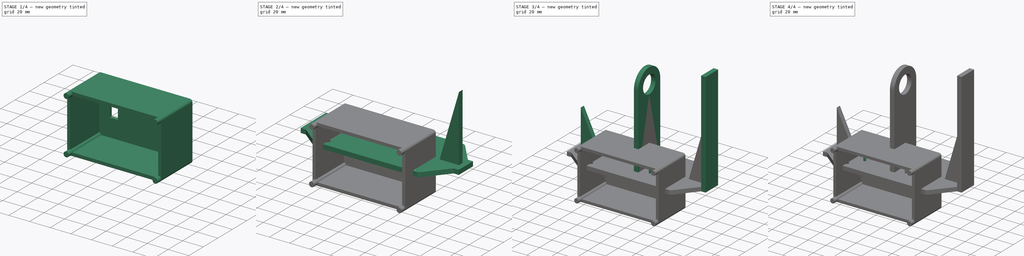
[diagram: build sequence overview — one tinted view per stage of 4, left to right]
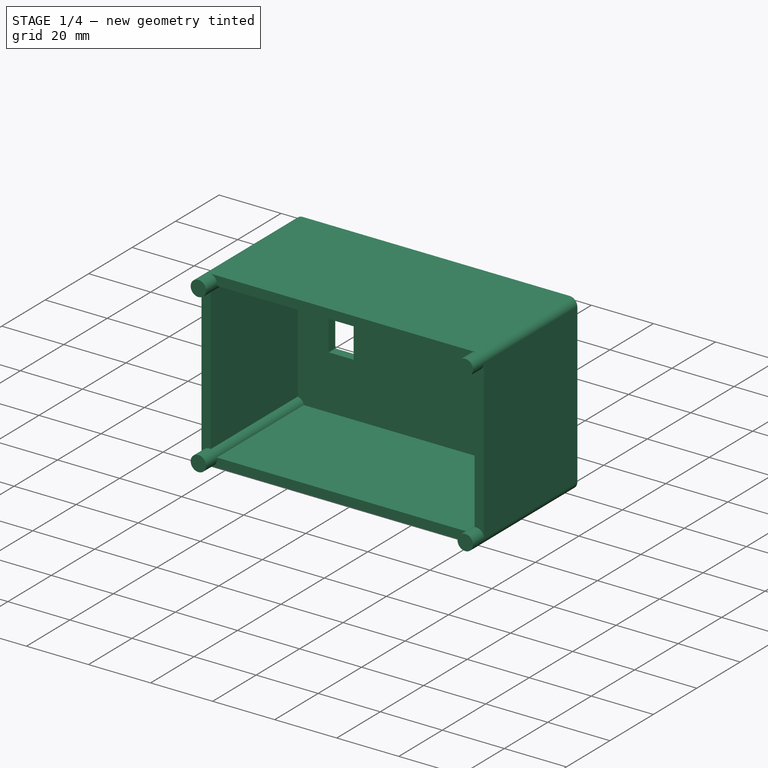
[diagram: stage 1 of 4 — iso view after this stage's code; geometry added in this stage tinted green]
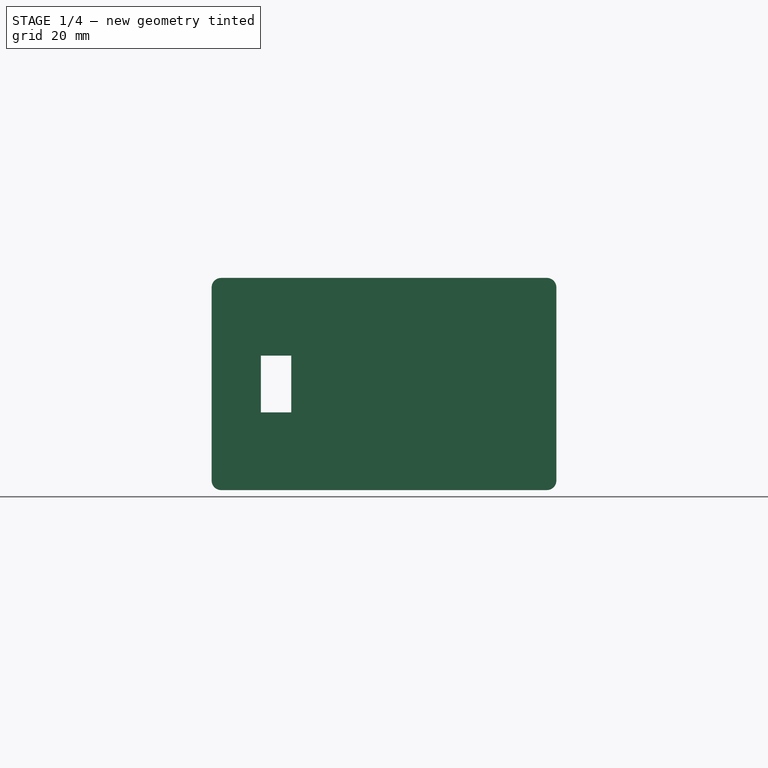
[diagram: stage 1 of 4 — front view after this stage's code; geometry added in this stage tinted green]
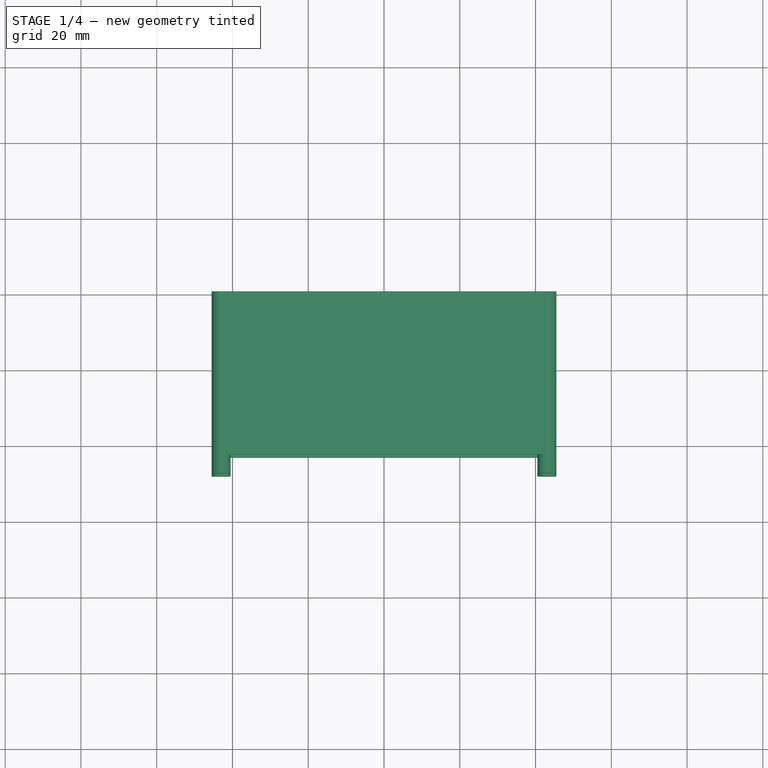
[diagram: stage 1 of 4 — top view after this stage's code; geometry added in this stage tinted green]
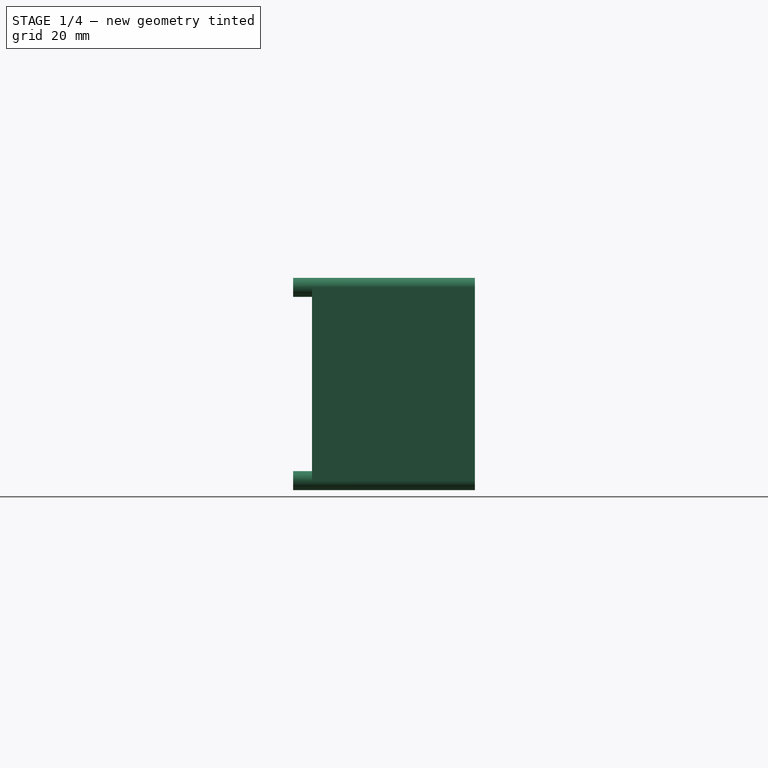
[diagram: stage 1 of 4 — right view after this stage's code; geometry added in this stage tinted green]
FCSTD DOCUMENT  (FreeCAD 0.20R29603 (Git))
Label: body1
License: All rights reserved
LicenseURL: http://en.wikipedia.org/wiki/All_rights_reserved
objects: Sketcher::SketchObject×12, PartDesign::Pad×12, PartDesign::Body×10, Part::Fillet×1
note: 47 computed .brp shape members not serialized (recipe doc carries the construction recipe); baked Part::Feature solids carry a one-line shape summary decoded from their .brp

FEATURE [Sketcher::SketchObject] Sketch021
  FullyConstrained = true
  MapMode = 5
  Placement = pos=(0,0,0) rot=(1,0,0;1.5708rad)
  Support = -> [XZ_Plane009]
  sketch-geometry (16):
    g0: LineSegment StartX=-40.5505 StartY=25 StartZ=0 EndX=40.5505 EndY=25 EndZ=0
    g1: LineSegment StartX=42.5 StartY=23.0505 StartZ=0 EndX=42.5 EndY=-23.0505 EndZ=0
    g2: LineSegment StartX=40.5505 StartY=-25 StartZ=0 EndX=-40.5505 EndY=-25 EndZ=0
    g3: LineSegment StartX=-42.5 StartY=-23.0505 StartZ=0 EndX=-42.5 EndY=23.0505 EndZ=0
    g4: LineSegment StartX=-43 StartY=28 StartZ=0 EndX=43 EndY=28 EndZ=0
    g5: LineSegment StartX=45.5 StartY=25.5 StartZ=0 EndX=45.5 EndY=-25.5 EndZ=0
    g6: LineSegment StartX=43 StartY=-28 StartZ=0 EndX=-43 EndY=-28 EndZ=0
    g7: LineSegment StartX=-45.5 StartY=-25.5 StartZ=0 EndX=-45.5 EndY=25.5 EndZ=0
    g8: ArcOfCircle CenterX=-43 CenterY=25.5 CenterZ=0 NormalX=0 NormalY=0 NormalZ=1 AngleXU=0 Radius=2.5 StartAngle=4.91375 EndAngle=6.08183
    g9: ArcOfCircle CenterX=43 CenterY=25.5 CenterZ=0 NormalX=0 NormalY=0 NormalZ=1 AngleXU=0 Radius=2.5 StartAngle=3.34295 EndAngle=4.51103
    g10: ArcOfCircle CenterX=43 CenterY=-25.5 CenterZ=0 NormalX=0 NormalY=0 NormalZ=1 AngleXU=0 Radius=2.5 StartAngle=4.71239 EndAngle=6.28319
    g11: ArcOfCircle CenterX=-43 CenterY=-25.5 CenterZ=0 NormalX=0 NormalY=0 NormalZ=1 AngleXU=0 Radius=2.5 StartAngle=3.14159 EndAngle=4.71239
    g12: ArcOfCircle CenterX=-43 CenterY=-25.5 CenterZ=0 NormalX=0 NormalY=0 NormalZ=1 AngleXU=0 Radius=2.5 StartAngle=0.201358 EndAngle=1.36944
    g13: ArcOfCircle CenterX=43 CenterY=-25.5 CenterZ=0 NormalX=0 NormalY=0 NormalZ=1 AngleXU=0 Radius=2.5 StartAngle=1.77215 EndAngle=2.94023
    g14: ArcOfCircle CenterX=43 CenterY=25.5 CenterZ=0 NormalX=0 NormalY=0 NormalZ=1 AngleXU=0 Radius=2.5 StartAngle=5e-16 EndAngle=1.5708
    g15: ArcOfCircle CenterX=-43 CenterY=25.5 CenterZ=0 NormalX=0 NormalY=0 NormalZ=1 AngleXU=0 Radius=2.5 StartAngle=1.5708 EndAngle=3.14159
  constraints (44):
    c: Horizontal(g0)
    c: Horizontal(g2)
    c: Vertical(g1)
    c: Vertical(g3)
    c: Horizontal(g4)
    c: Horizontal(g6)
    c: Vertical(g5)
    c: Vertical(g7)
    c: Equal(g8,g9)
    c: Equal(g8,g10)
    c: Diameter(g8) = 5
    c: Coincident(g12,g3)
    c: Tangent(g11,g7) = 1.5708
    c: Equal(g11,g12)
    c: Tangent(g11,g6) = 1.5708
    c: Coincident(g12,g2)
    c: Coincident(g11,g12)
    c: Tangent(g10,g6) = 1.5708
    c: Coincident(g2,g13)
    c: Equal(g10,g13)
    c: Tangent(g10,g5) = 1.5708
    c: Coincident(g13,g1)
    c: Coincident(g10,g13)
    c: Coincident(g14,g4) = 1.5708
    c: Equal(g9,g14)
    c: Tangent(g14,g5) = 1.5708
    c: Coincident(g9,g14)
    c: Coincident(g1,g9)
    c: Coincident(g0,g9)
    c: Coincident(g15,g7) = 1.5708
    c: Coincident(g8,g3)
    c: Equal(g8,g15)
    c: Coincident(g8,g0)
    c: Tangent(g15,g4) = 1.5708
    c: Coincident(g8,g15)
    c: DistanceX(g3,g1) = 85
    c: DistanceY(g0,g4) = 3
    c: DistanceX(g1,g5) = 3
    c: Equal(g6,g4)
    c: Equal(g5,g7)
    c: Symmetric(g0,g2,g-1)
    c: Symmetric(g3,g1,g-2)
    c: DistanceY(g6,g2) = 3
    c: DistanceY(g2,g0) = 50
FEATURE [PartDesign::Pad] Pad009
  Direction = (0,-1,2e-16)
  Length = 43
  Length2 = 10
  Placement = pos=(0,0,0) rot=(1,0,0;1.5708rad)
  Profile = -> Sketch021
  ReferenceAxis = -> Sketch021 [N_Axis]
  Type = 0
FEATURE [Sketcher::SketchObject] Sketch022
  FullyConstrained = true
  MapMode = 5
  Placement = pos=(0,0,0) rot=(1,0,0;1.5708rad)
  Support = -> [XZ_Plane009]
  sketch-geometry (8):
    g0: LineSegment StartX=-42.5 StartY=25 StartZ=0 EndX=42.5 EndY=25 EndZ=0
    g1: LineSegment StartX=42.5 StartY=25 StartZ=0 EndX=42.5 EndY=-25 EndZ=0
    g2: LineSegment StartX=42.5 StartY=-25 StartZ=0 EndX=-42.5 EndY=-25 EndZ=0
    g3: LineSegment StartX=-42.5 StartY=-25 StartZ=0 EndX=-42.5 EndY=25 EndZ=0
    g4: LineSegment StartX=-32.5 StartY=7.5 StartZ=0 EndX=-24.5 EndY=7.5 EndZ=0
    g5: LineSegment StartX=-24.5 StartY=7.5 StartZ=0 EndX=-24.5 EndY=-7.5 EndZ=0
    g6: LineSegment StartX=-24.5 StartY=-7.5 StartZ=0 EndX=-32.5 EndY=-7.5 EndZ=0
    g7: LineSegment StartX=-32.5 StartY=-7.5 StartZ=0 EndX=-32.5 EndY=7.5 EndZ=0
  constraints (21):
    c: Coincident(g0,g1)
    c: Coincident(g1,g2)
    c: Coincident(g2,g3)
    c: Coincident(g3,g0)
    c: Horizontal(g2)
    c: Vertical(g1)
    c: DistanceY(g1,g1) = 50
    c: DistanceX(g0,g0) = 85
    c: Symmetric(g0,g2,g-1)
    c: Symmetric(g0,g0,g-2)
    c: Coincident(g4,g5)
    c: Coincident(g5,g6)
    c: Coincident(g6,g7)
    c: Coincident(g7,g4)
    c: Horizontal(g4)
    c: Horizontal(g6)
    c: Vertical(g7)
    c: Symmetric(g4,g5,g-1)
    c: DistanceX(g6,g-1) = 32.5
    c: DistanceX(g4,g4) = 8
    c: DistanceY(g5,g5) = 15
FEATURE [PartDesign::Pad] Pad010
  BaseFeature = -> Pad009
  Direction = (0,-1,-2e-16)
  Length = 3
  Length2 = 10
  Placement = pos=(0,0,0) rot=(1,0,0;1.5708rad)
  Profile = -> Sketch022
  ReferenceAxis = -> Sketch022 [N_Axis]
  Type = 0
FEATURE [Sketcher::SketchObject] Sketch002  label="Sketch023"
  FullyConstrained = true
  MapMode = 5
  Placement = pos=(0,0,0) rot=(1,0,0;1.5708rad)
  Support = -> [XZ_Plane009]
  sketch-geometry (4):
    g0: Circle CenterX=-43 CenterY=25.5 CenterZ=0 NormalX=0 NormalY=0 NormalZ=1 AngleXU=0 Radius=2.5
    g1: Circle CenterX=43 CenterY=25.5 CenterZ=0 NormalX=0 NormalY=0 NormalZ=1 AngleXU=0 Radius=2.5
    g2: Circle CenterX=43 CenterY=-25.5 CenterZ=0 NormalX=0 NormalY=0 NormalZ=1 AngleXU=0 Radius=2.5
    g3: Circle CenterX=-43 CenterY=-25.5 CenterZ=0 NormalX=0 NormalY=0 NormalZ=1 AngleXU=0 Radius=2.5
  constraints (10):
    c: Equal(g3,g0)
    c: Equal(g3,g1)
    c: Equal(g3,g2)
    c: Diameter(g3) = 5
    c: DistanceX(g0,g-1) = 43
    c: DistanceY(g3,g0) = 51
    c: DistanceY(g2,g1) = 51
    c: DistanceX(g-1,g1) = 43
    c: Symmetric(g1,g2,g-1)
    c: Symmetric(g3,g0,g-1)
FEATURE [PartDesign::Pad] Pad011
  BaseFeature = -> Pad010
  Direction = (0,-1,-2e-16)
  Length = 48
  Length2 = 10
  Placement = pos=(0,0,0) rot=(1,0,0;1.5708rad)
  Profile = -> Sketch002
  ReferenceAxis = -> Sketch002 [N_Axis]
  Type = 0
FEATURE [PartDesign::Body] Body009
  Group = -> [Sketch021,Pad009,Sketch022,Pad010,Sketch002,Pad011]
  Origin = -> Origin009
  Placement = pos=(0,0,48) rot=(1,0,0;1.5708rad)
  Tip = -> Pad011
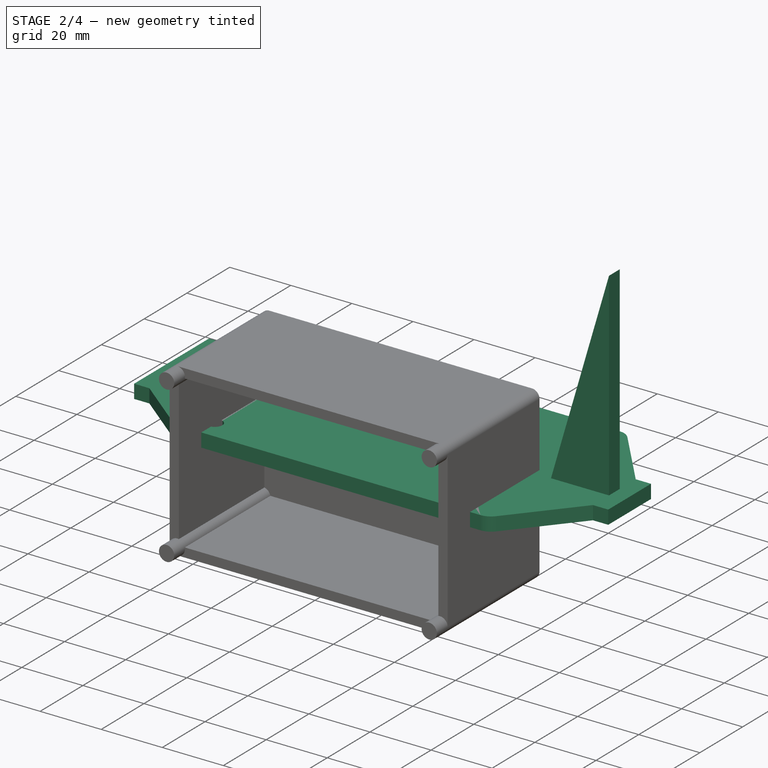
[diagram: stage 2 of 4 — iso view after this stage's code; geometry added in this stage tinted green]
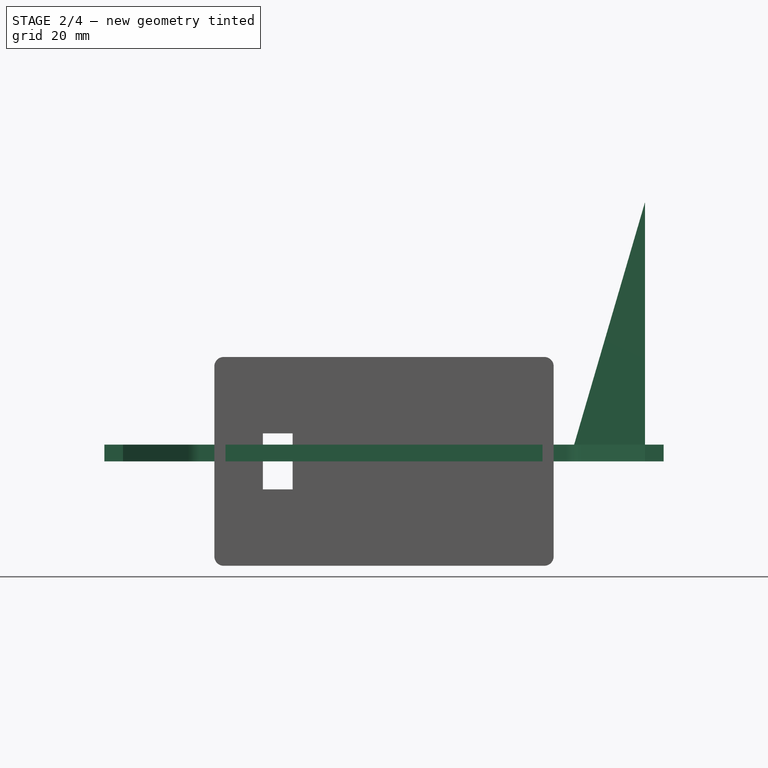
[diagram: stage 2 of 4 — front view after this stage's code; geometry added in this stage tinted green]
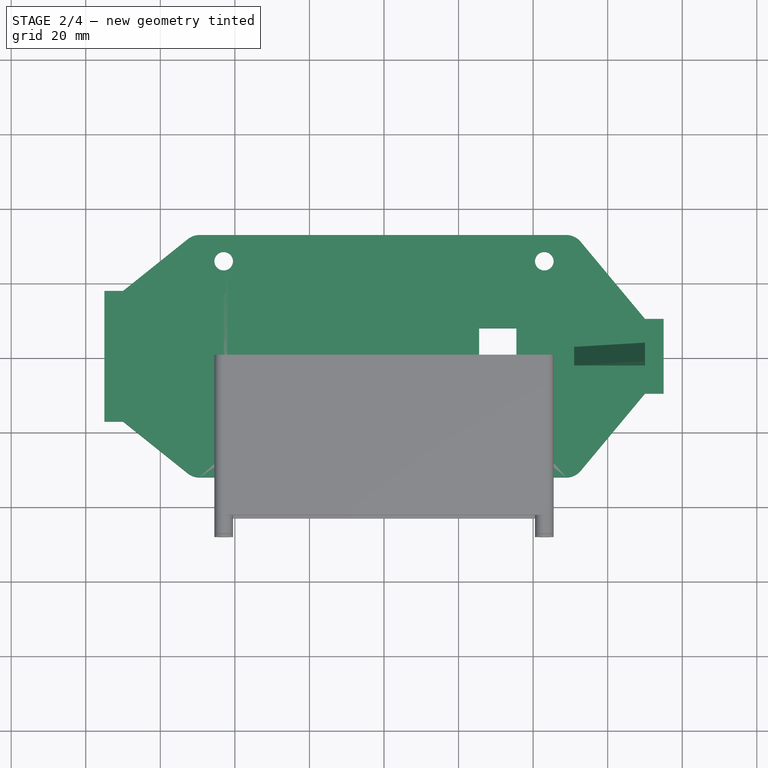
[diagram: stage 2 of 4 — top view after this stage's code; geometry added in this stage tinted green]
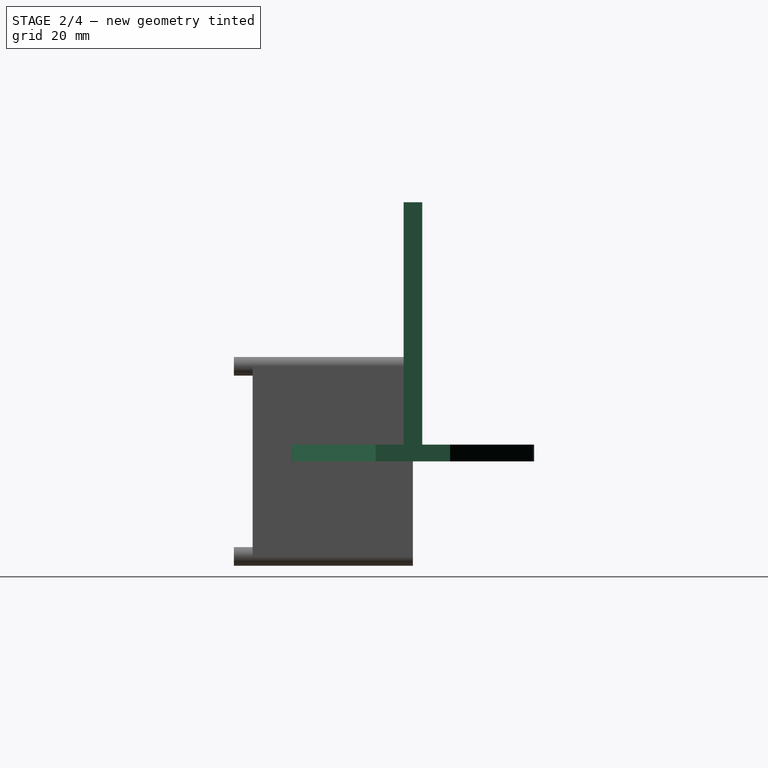
[diagram: stage 2 of 4 — right view after this stage's code; geometry added in this stage tinted green]
FEATURE [Sketcher::SketchObject] Sketch
  FullyConstrained = true
  MapMode = 5
  Support = -> [XY_Plane]
  sketch-geometry (20):
    g0: LineSegment StartX=-51.25 StartY=32.5 StartZ=0 EndX=51.25 EndY=32.5 EndZ=0
    g1: LineSegment StartX=51.25 StartY=32.5 StartZ=0 EndX=70 EndY=10 EndZ=0
    g2: LineSegment StartX=70 StartY=10 StartZ=0 EndX=75 EndY=10 EndZ=0
    g3: LineSegment StartX=75 StartY=10 StartZ=0 EndX=75 EndY=-10 EndZ=0
    g4: LineSegment StartX=75 StartY=-10 StartZ=0 EndX=70 EndY=-10 EndZ=0
    g5: LineSegment StartX=70 StartY=-10 StartZ=0 EndX=51.25 EndY=-32.5 EndZ=0
    g6: LineSegment StartX=51.25 StartY=-32.5 StartZ=0 EndX=-51.25 EndY=-32.5 EndZ=0
    g7: LineSegment StartX=-51.25 StartY=-32.5 StartZ=0 EndX=-70 EndY=-17.5 EndZ=0
    g8: LineSegment StartX=-70 StartY=-17.5 StartZ=0 EndX=-75 EndY=-17.5 EndZ=0
    g9: LineSegment StartX=-75 StartY=-17.5 StartZ=0 EndX=-75 EndY=17.5 EndZ=0
    g10: LineSegment StartX=-75 StartY=17.5 StartZ=0 EndX=-70 EndY=17.5 EndZ=0
    g11: LineSegment StartX=-70 StartY=17.5 StartZ=0 EndX=-51.25 EndY=32.5 EndZ=0
    g12: LineSegment StartX=25.5 StartY=7.5 StartZ=0 EndX=35.5 EndY=7.5 EndZ=0
    g13: LineSegment StartX=35.5 StartY=7.5 StartZ=0 EndX=35.5 EndY=-7.5 EndZ=0
    g14: LineSegment StartX=35.5 StartY=-7.5 StartZ=0 EndX=25.5 EndY=-7.5 EndZ=0
    g15: LineSegment StartX=25.5 StartY=-7.5 StartZ=0 EndX=25.5 EndY=7.5 EndZ=0
    g16: Circle CenterX=43 CenterY=-25.5 CenterZ=0 NormalX=0 NormalY=0 NormalZ=1 AngleXU=0 Radius=2.5
    g17: Circle CenterX=43 CenterY=25.5 CenterZ=0 NormalX=0 NormalY=0 NormalZ=1 AngleXU=0 Radius=2.5
    g18: Circle CenterX=-43 CenterY=25.5 CenterZ=0 NormalX=0 NormalY=0 NormalZ=1 AngleXU=0 Radius=2.5
    g19: Circle CenterX=-43 CenterY=-25.5 CenterZ=0 NormalX=0 NormalY=0 NormalZ=1 AngleXU=0 Radius=2.5
  constraints (52):
    c: Coincident(g0,g1)
    c: Coincident(g1,g2)
    c: Horizontal(g2)
    c: Coincident(g2,g3)
    c: Coincident(g3,g4)
    c: Horizontal(g4)
    c: Coincident(g4,g5)
    c: Coincident(g5,g6)
    c: Coincident(g6,g7)
    c: Coincident(g7,g8)
    c: Horizontal(g8)
    c: Coincident(g8,g9)
    c: Coincident(g9,g10)
    c: Horizontal(g10)
    c: Coincident(g10,g11)
    c: Coincident(g11,g0)
    c: Coincident(g12,g13)
    c: Coincident(g13,g14)
    c: Coincident(g14,g15)
    c: Coincident(g15,g12)
    c: Horizontal(g12)
    c: Horizontal(g14)
    c: Vertical(g13)
    c: Symmetric(g12,g14,g-1)
    c: Symmetric(g2,g3,g-1)
    c: DistanceY(g3,g3) = 20
    c: DistanceX(g2,g2) = 5
    c: Equal(g2,g4)
    c: DistanceX(g0,g0) = 102.5
    c: Symmetric(g0,g0,g-2)
    c: Symmetric(g5,g6,g-2)
    c: Diameter(g18) = 5
    c: Diameter(g19) = 5
    c: Diameter(g16) = 5
    c: Diameter(g17) = 5
    c: DistanceY(g5,g0) = 65
    c: Symmetric(g0,g5,g-1)
    c: DistanceX(g8,g3) = 150
    c: DistanceX(g10,g10) = 5
    c: Equal(g8,g10)
    c: DistanceY(g9,g9) = 35
    c: Symmetric(g9,g8,g-1)
    c: DistanceX(g12,g12) = 10
    c: DistanceY(g13,g13) = 15
    c: DistanceX(g12,g17) = 7.5
    c: DistanceY(g16,g17) = 51
    c: Symmetric(g16,g17,g-1)
    c: Symmetric(g18,g19,g-1)
    c: DistanceY(g19,g18) = 51
    c: DistanceX(g8,g-1) = 75
    c: DistanceX(g18,g-1) = 43
    c: DistanceX(g-1,g16) = 43
FEATURE [PartDesign::Pad] Pad
  Direction = (0,0,1)
  Length = 4.5
  Length2 = 10
  Profile = -> Sketch
  ReferenceAxis = -> Sketch [N_Axis]
  Type = 0
FEATURE [PartDesign::Body] Body007
  Group = -> [Sketch019,Pad007]
  Origin = -> Origin007
  Tip = -> Pad007
FEATURE [Sketcher::SketchObject] Sketch020
  FullyConstrained = true
  MapMode = 5
  Placement = pos=(0,0,0) rot=(1,0,0;1.5708rad)
  Support = -> [XZ_Plane008]
  sketch-geometry (3):
    g0: LineSegment StartX=70 StartY=69.5 StartZ=0 EndX=51 EndY=4.5 EndZ=0
    g1: LineSegment StartX=51 StartY=4.5 StartZ=0 EndX=70 EndY=4.5 EndZ=0
    g2: LineSegment StartX=70 StartY=4.5 StartZ=0 EndX=70 EndY=69.5 EndZ=0
  constraints (9):
    c: Coincident(g0,g1)
    c: Horizontal(g1)
    c: Coincident(g1,g2)
    c: Coincident(g2,g0)
    c: Vertical(g2)
    c: DistanceY(g2,g2) = 65
    c: DistanceX(g1,g1) = 19
    c: DistanceY(g-1,g1) = 4.5
    c: DistanceX(g-1,g1) = 70
FEATURE [PartDesign::Pad] Pad008
  Direction = (0,-1,2e-16)
  Length = 5
  Length2 = 10
  Midplane = true
  Placement = pos=(0,0,0) rot=(1,0,0;1.5708rad)
  Profile = -> Sketch020
  ReferenceAxis = -> Sketch020 [N_Axis]
  Type = 0
FEATURE [PartDesign::Body] Body008
  Group = -> [Sketch020,Pad008]
  Origin = -> Origin008
  Tip = -> Pad008
FEATURE [Part::Fillet] Fillet
  Base = -> Pad
  Edges = 4 edges r=5: [Edge1,Edge2,Edge17,Edge20]
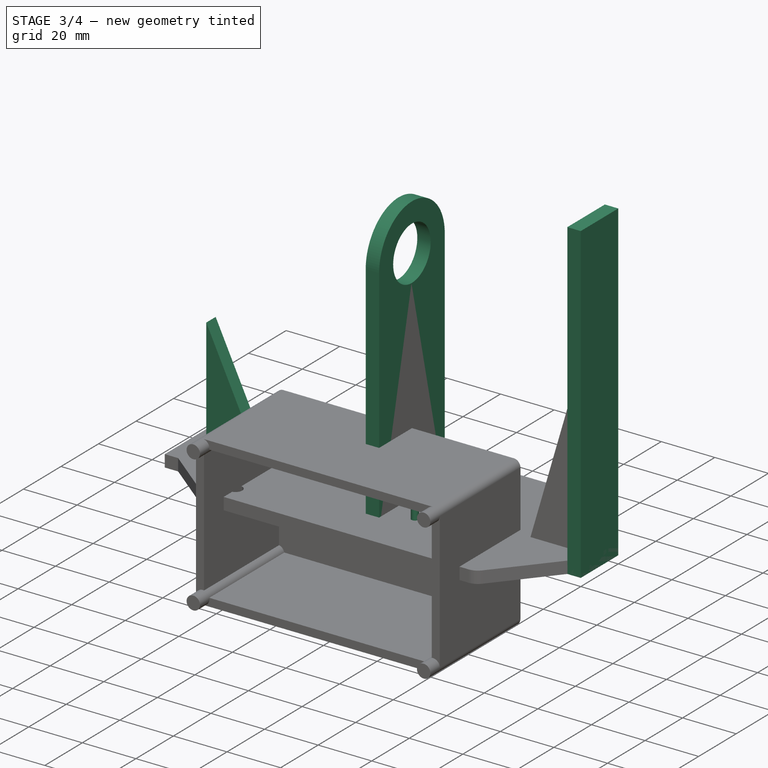
[diagram: stage 3 of 4 — iso view after this stage's code; geometry added in this stage tinted green]
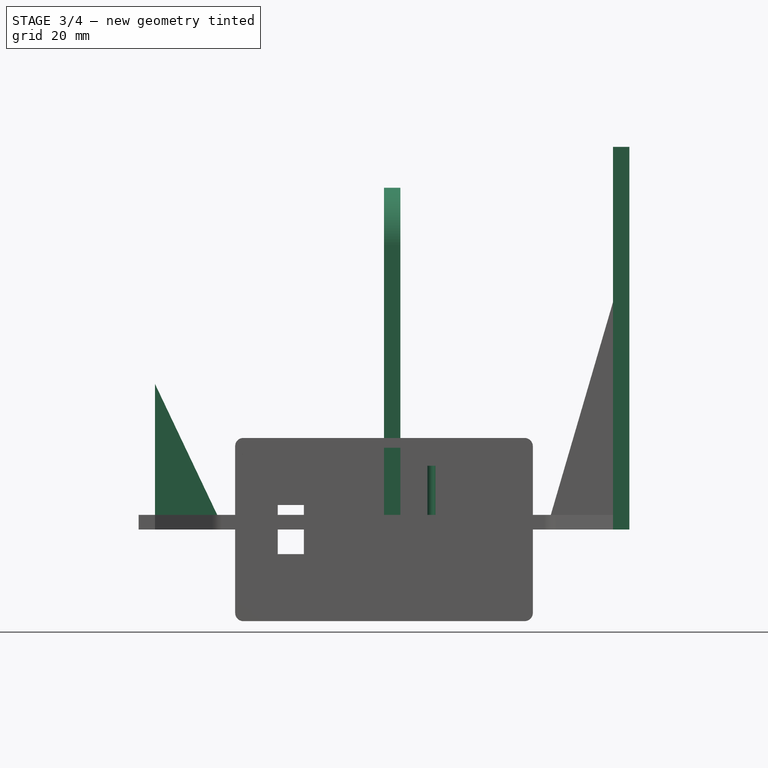
[diagram: stage 3 of 4 — front view after this stage's code; geometry added in this stage tinted green]
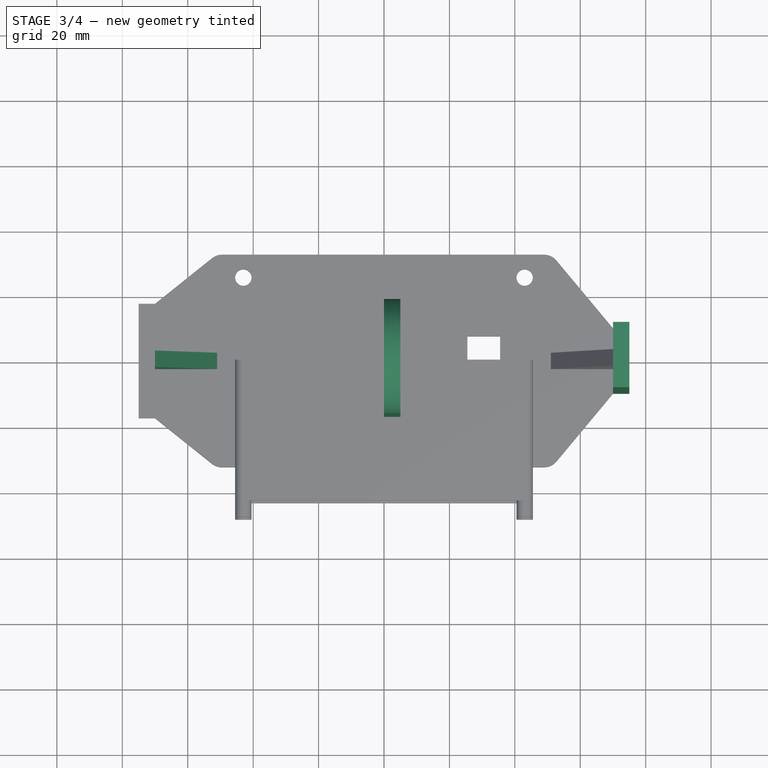
[diagram: stage 3 of 4 — top view after this stage's code; geometry added in this stage tinted green]
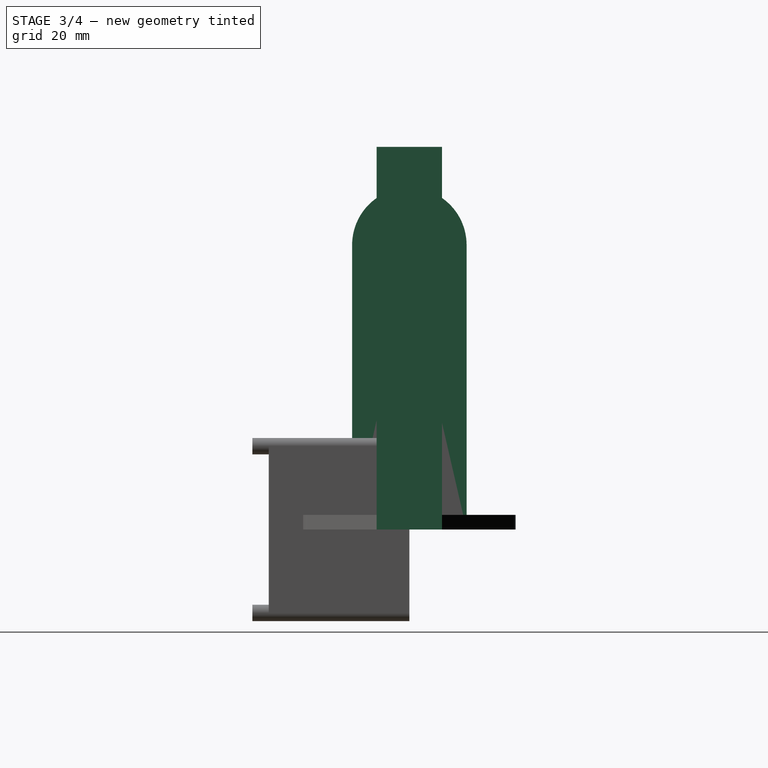
[diagram: stage 3 of 4 — right view after this stage's code; geometry added in this stage tinted green]
FEATURE [PartDesign::Body] Body003
  Group = -> [Sketch011,Pad003]
  Origin = -> Origin003
  Tip = -> Pad003
FEATURE [PartDesign::Pad] Pad004
  Direction = (0,0,1)
  Length = 19.5
  Length2 = 10
  Profile = -> Sketch016
  ReferenceAxis = -> Sketch016 [N_Axis]
  Type = 0
FEATURE [PartDesign::Body] Body004
  Group = -> [Sketch016,Pad004]
  Origin = -> Origin004
  Tip = -> Pad004
FEATURE [Sketcher::SketchObject] Sketch017
  FullyConstrained = true
  MapMode = 5
  Support = -> [XY_Plane005]
  sketch-geometry (4):
    g0: LineSegment StartX=70 StartY=10 StartZ=0 EndX=75 EndY=10 EndZ=0
    g1: LineSegment StartX=75 StartY=10 StartZ=0 EndX=75 EndY=-10 EndZ=0
    g2: LineSegment StartX=75 StartY=-10 StartZ=0 EndX=70 EndY=-10 EndZ=0
    g3: LineSegment StartX=70 StartY=-10 StartZ=0 EndX=70 EndY=10 EndZ=0
  constraints (11):
    c: Coincident(g0,g1)
    c: Coincident(g1,g2)
    c: Coincident(g2,g3)
    c: Coincident(g3,g0)
    c: Horizontal(g0)
    c: Horizontal(g2)
    c: Vertical(g1)
    c: DistanceY(g1,g1) = 20
    c: DistanceX(g2,g2) = 5
    c: Symmetric(g2,g0,g-1)
    c: DistanceX(g-1,g0) = 75
FEATURE [PartDesign::Pad] Pad005
  Direction = (0,0,1)
  Length = 117
  Length2 = 10
  Profile = -> Sketch017
  ReferenceAxis = -> Sketch017 [N_Axis]
  Type = 0
FEATURE [PartDesign::Body] Body005
  Group = -> [Sketch017,Pad005]
  Origin = -> Origin005
  Tip = -> Pad005
FEATURE [Sketcher::SketchObject] Sketch018
  FullyConstrained = true
  MapMode = 5
  Placement = pos=(0,0,0) rot=(0.57735,0.57735,0.57735;2.0944rad)
  Support = -> [YZ_Plane006]
  sketch-geometry (5):
    g0: ArcOfCircle CenterX=0 CenterY=87 CenterZ=0 NormalX=0 NormalY=0 NormalZ=1 AngleXU=0 Radius=17.5 StartAngle=0 EndAngle=3.14159
    g1: LineSegment StartX=17.5 StartY=0 StartZ=0 EndX=17.5 EndY=87 EndZ=0
    g2: LineSegment StartX=-17.5 StartY=87 StartZ=0 EndX=-17.5 EndY=0 EndZ=0
    g3: LineSegment StartX=-17.5 StartY=0 StartZ=0 EndX=17.5 EndY=0 EndZ=0
    g4: Circle CenterX=0 CenterY=87 CenterZ=0 NormalX=0 NormalY=0 NormalZ=1 AngleXU=0 Radius=10
  constraints (12):
    c: Tangent(g1,g0) = -1.5708
    c: Tangent(g0,g2) = -1.5708
    c: PointOnObject(g0,g-2)
    c: Coincident(g3,g2)
    c: Coincident(g3,g1)
    c: Symmetric(g2,g1,g-2)
    c: Vertical(g1)
    c: DistanceX(g0,g0) = 35
    c: Coincident(g4,g0)
    c: Diameter(g4) = 20
    c: DistanceY(g2,g2) = 87
    c: PointOnObject(g1,g-1)
FEATURE [PartDesign::Pad] Pad006
  Direction = (1,-2e-16,3e-16)
  Length = 5
  Length2 = 10
  Placement = pos=(0,0,0) rot=(0.57735,0.57735,0.57735;2.0944rad)
  Profile = -> Sketch018
  ReferenceAxis = -> Sketch018 [N_Axis]
  Type = 0
FEATURE [PartDesign::Body] Body006
  Group = -> [Sketch018,Pad006]
  Origin = -> Origin006
  Placement = pos=(-75,0,0) rot=(0,0,1;0rad)
  Tip = -> Pad006
FEATURE [Sketcher::SketchObject] Sketch019
  FullyConstrained = true
  MapMode = 5
  Placement = pos=(0,0,0) rot=(1,0,0;1.5708rad)
  Support = -> [XZ_Plane007]
  sketch-geometry (3):
    g0: LineSegment StartX=-70 StartY=44.5 StartZ=0 EndX=-51 EndY=4.5 EndZ=0
    g1: LineSegment StartX=-51 StartY=4.5 StartZ=0 EndX=-70 EndY=4.5 EndZ=0
    g2: LineSegment StartX=-70 StartY=4.5 StartZ=0 EndX=-70 EndY=44.5 EndZ=0
  constraints (9):
    c: Coincident(g0,g1)
    c: Horizontal(g1)
    c: Coincident(g1,g2)
    c: Coincident(g2,g0)
    c: Vertical(g2)
    c: DistanceY(g2,g2) = 40
    c: DistanceX(g1,g1) = 19
    c: DistanceY(g-1,g1) = 4.5
    c: DistanceX(g1,g-1) = 70
FEATURE [PartDesign::Pad] Pad007
  Direction = (0,-1,2e-16)
  Length = 5
  Length2 = 10
  Midplane = true
  Placement = pos=(0,0,0) rot=(1,0,0;1.5708rad)
  Profile = -> Sketch019
  ReferenceAxis = -> Sketch019 [N_Axis]
  Type = 0
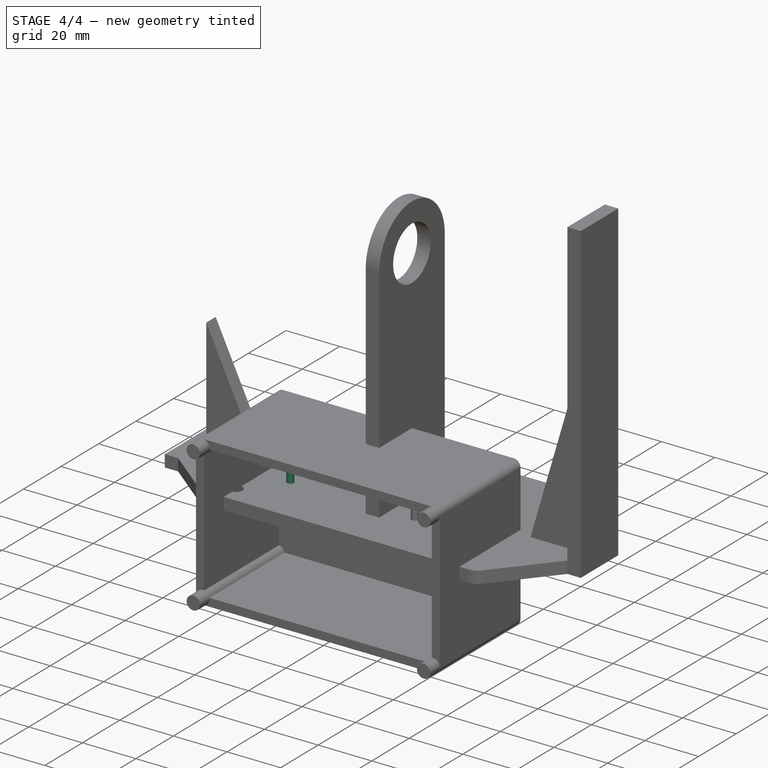
[diagram: stage 4 of 4 — iso view after this stage's code; geometry added in this stage tinted green]
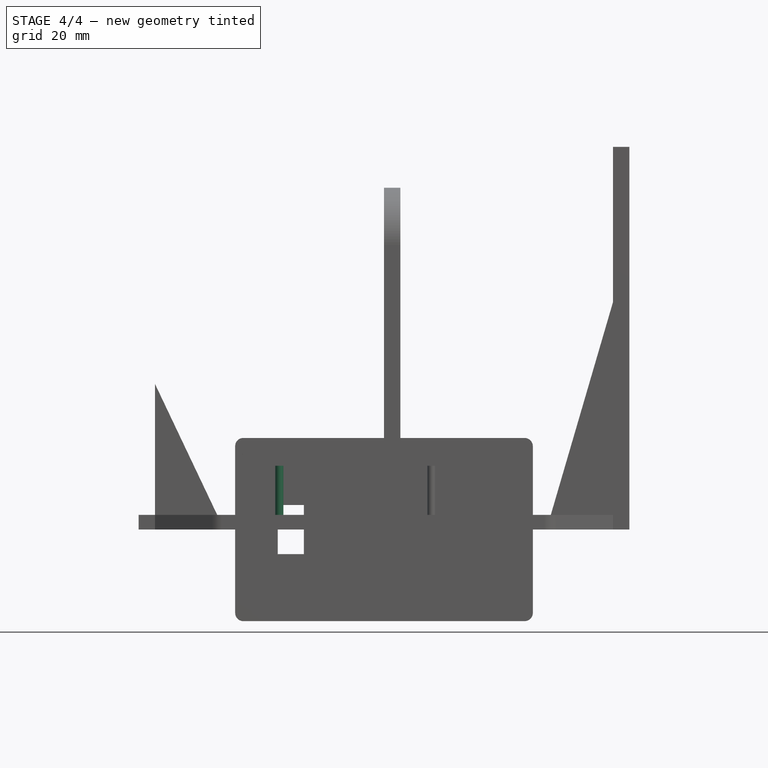
[diagram: stage 4 of 4 — front view after this stage's code; geometry added in this stage tinted green]
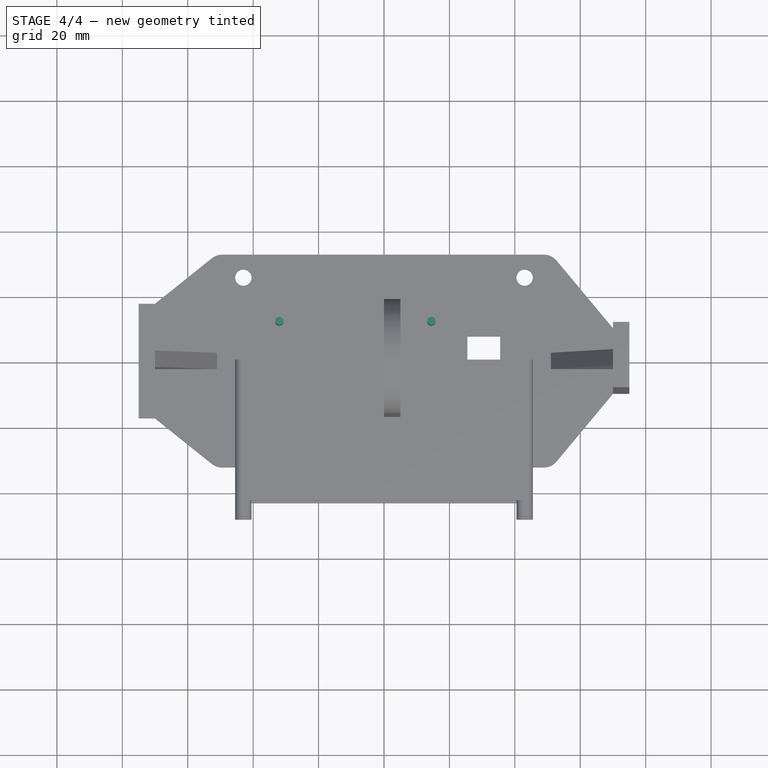
[diagram: stage 4 of 4 — top view after this stage's code; geometry added in this stage tinted green]
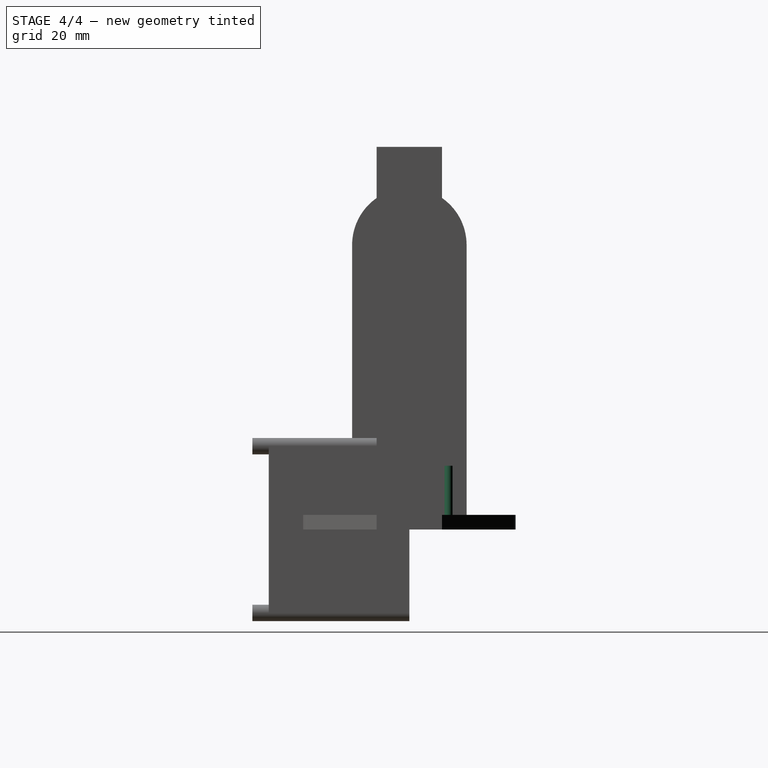
[diagram: stage 4 of 4 — right view after this stage's code; geometry added in this stage tinted green]
FEATURE [PartDesign::Body] Body
  Group = -> [Sketch,Pad]
  Origin = -> Origin
  Tip = -> Pad
FEATURE [Sketcher::SketchObject] Sketch001
  FullyConstrained = false
  MapMode = 5
  Support = -> [XY_Plane001]
  sketch-geometry (1):
    g0: Circle CenterX=-32 CenterY=12 CenterZ=0 NormalX=0 NormalY=0 NormalZ=1 AngleXU=0 Radius=1.25
  constraints (1):
    c: DistanceX(g0,g-1) = 32
FEATURE [PartDesign::Pad] Pad001
  Direction = (0,0,1)
  Length = 19.5
  Length2 = 10
  Profile = -> Sketch001
  ReferenceAxis = -> Sketch001 [N_Axis]
  Type = 0
  expr: Length = 19.5 mm
FEATURE [PartDesign::Body] Body001
  Group = -> [Sketch001,Pad001]
  Origin = -> Origin001
  Tip = -> Pad001
FEATURE [Sketcher::SketchObject] Sketch011  label="Sketch003"
  FullyConstrained = false
  MapMode = 5
  Support = -> [XY_Plane003]
  sketch-geometry (1):
    g0: Circle CenterX=-32 CenterY=-12 CenterZ=0 NormalX=0 NormalY=0 NormalZ=1 AngleXU=0 Radius=1.25
FEATURE [Sketcher::SketchObject] Sketch006  label="Sketch002"
  FullyConstrained = false
  MapMode = 5
  Support = -> [XY_Plane002]
  sketch-geometry (1):
    g0: Circle CenterX=14.5 CenterY=12 CenterZ=0 NormalX=0 NormalY=0 NormalZ=1 AngleXU=0 Radius=1.25
  constraints (1):
    c: Diameter(g0) = 2.5
FEATURE [Sketcher::SketchObject] Sketch016  label="Sketch004"
  FullyConstrained = false
  MapMode = 5
  Support = -> [XY_Plane004]
  sketch-geometry (1):
    g0: Circle CenterX=14.5 CenterY=-12 CenterZ=0 NormalX=0 NormalY=0 NormalZ=1 AngleXU=0 Radius=1.25
FEATURE [PartDesign::Pad] Pad002
  Direction = (0,0,1)
  Length = 19.5
  Length2 = 10
  Profile = -> Sketch006
  ReferenceAxis = -> Sketch006 [N_Axis]
  Type = 0
FEATURE [PartDesign::Body] Body002
  Group = -> [Sketch006,Pad002]
  Origin = -> Origin002
  Tip = -> Pad002
FEATURE [PartDesign::Pad] Pad003
  Direction = (0,0,1)
  Length = 19.5
  Length2 = 10
  Profile = -> Sketch011
  ReferenceAxis = -> Sketch011 [N_Axis]
  Type = 0
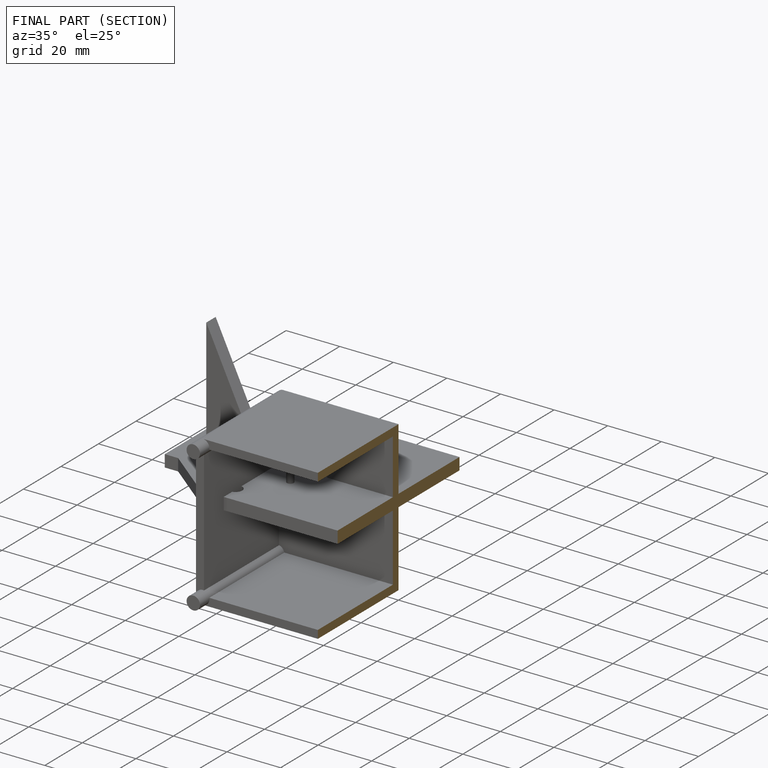
[diagram: finished part — half-section view (interior)]
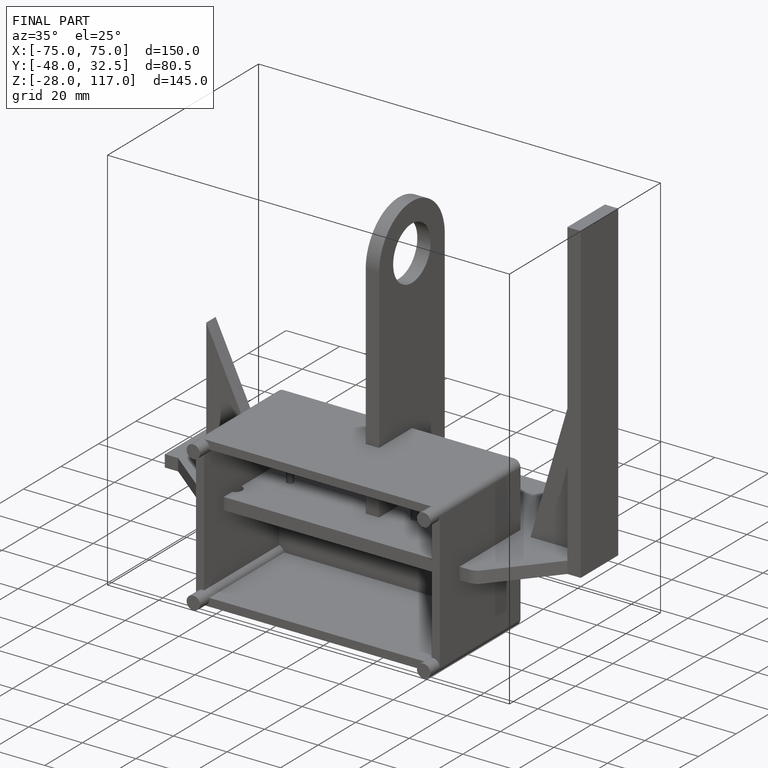
[diagram: finished part — iso view with bounding-box wireframe]
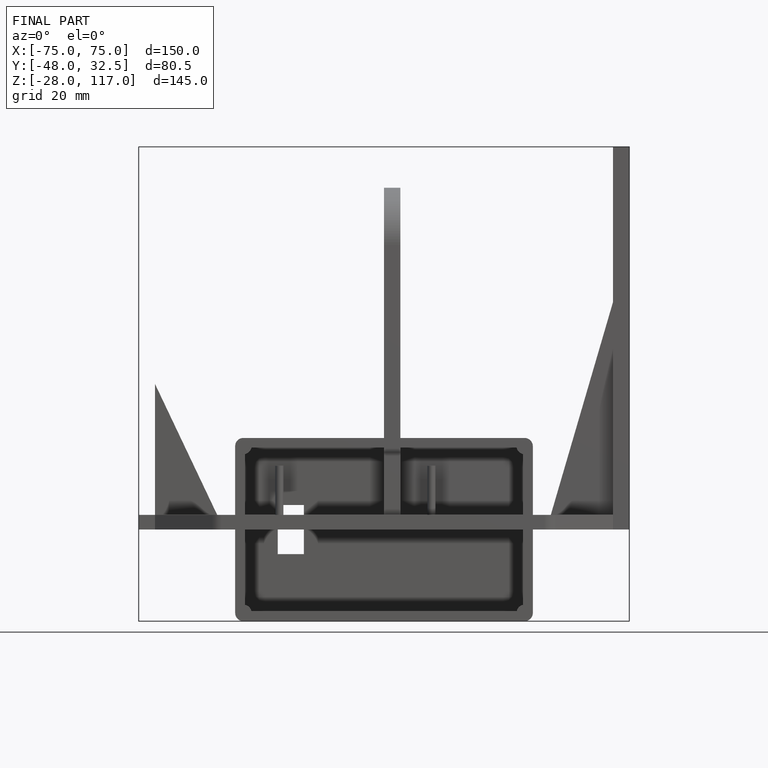
[diagram: finished part — front view with bounding-box wireframe]
